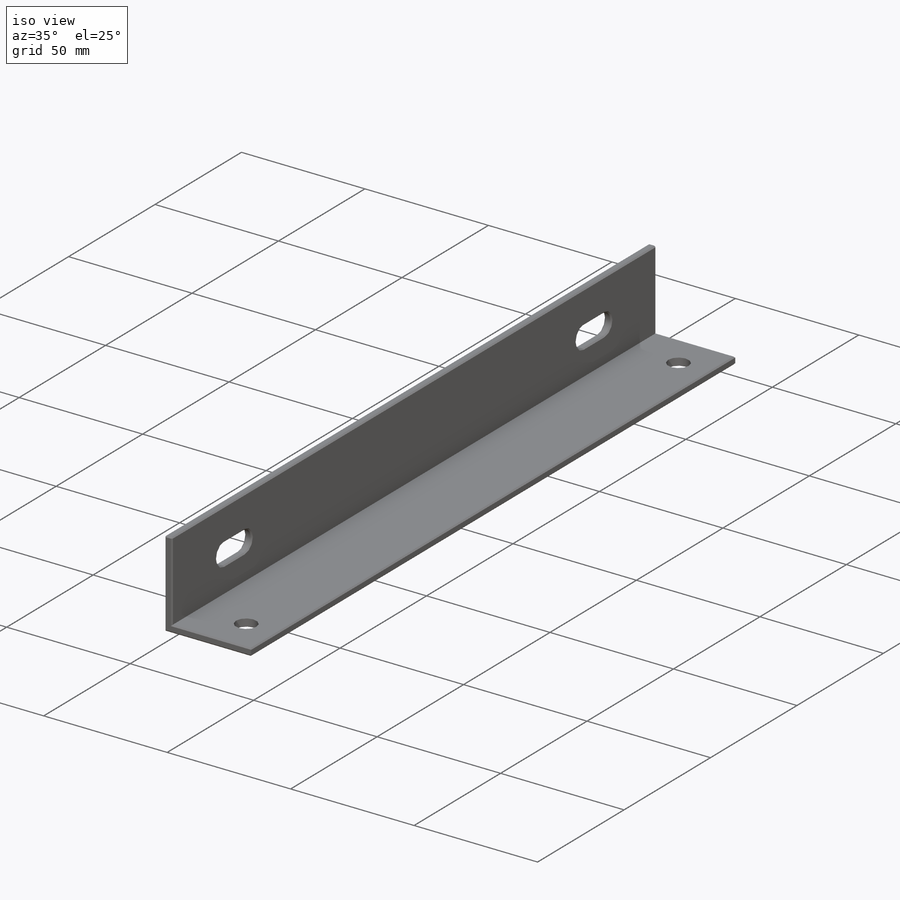
[diagram: iso view]
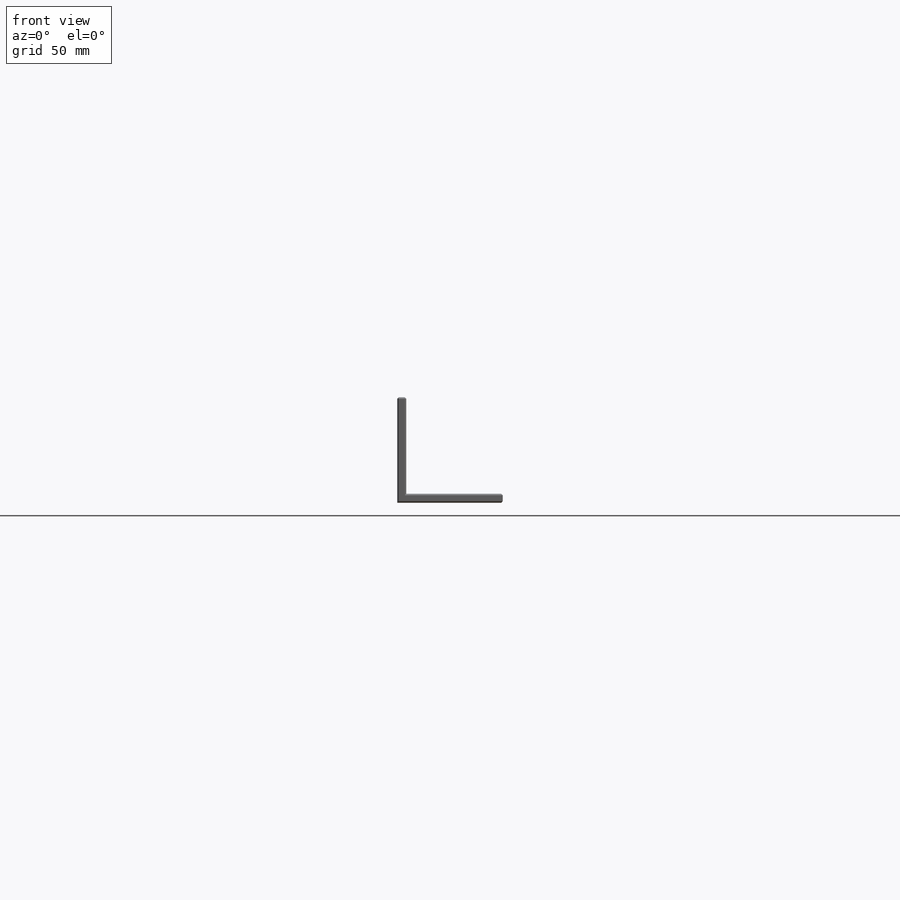
[diagram: front view]
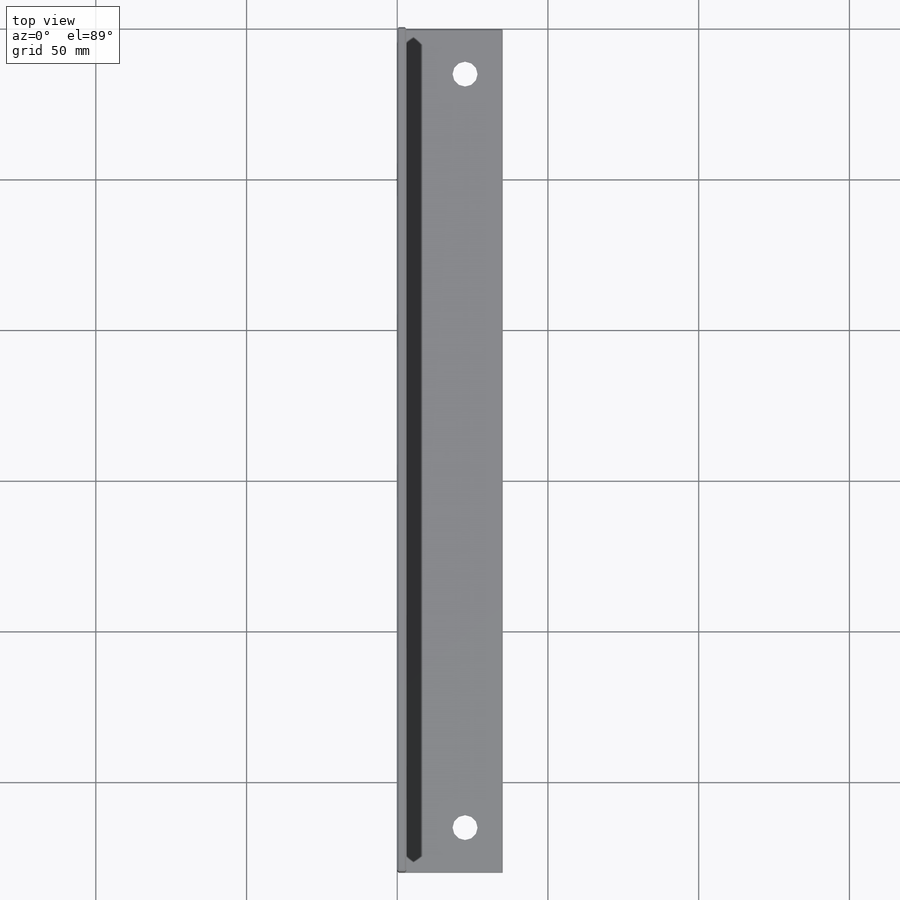
[diagram: top view]
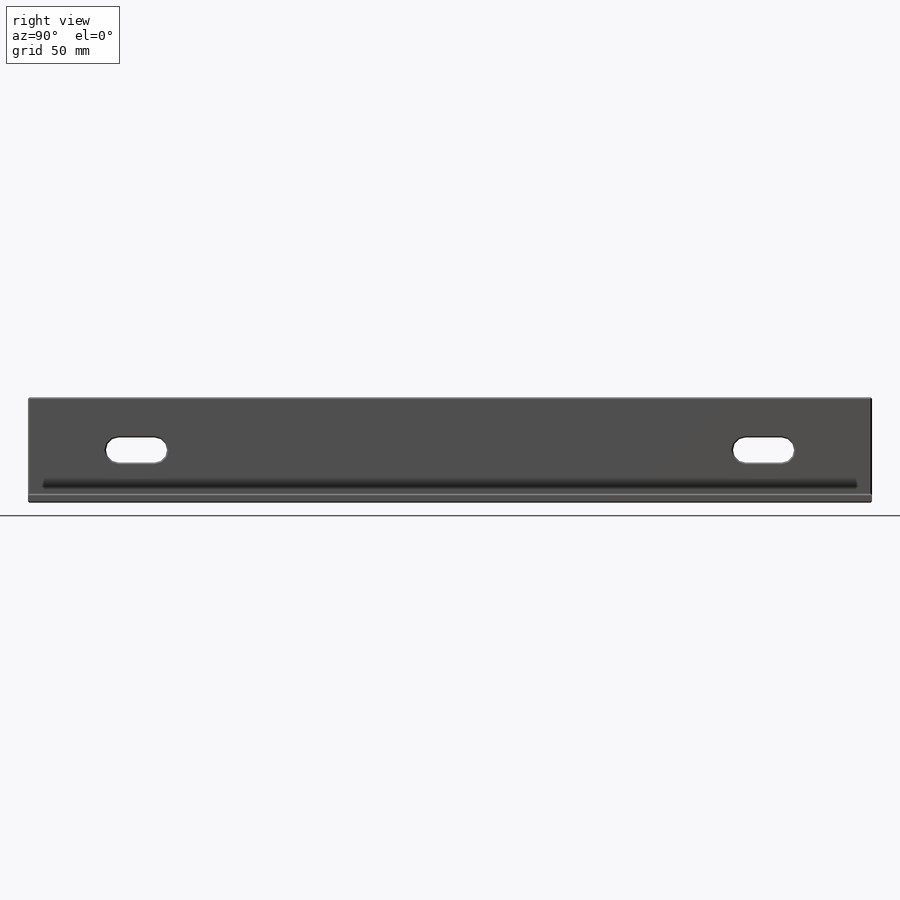
[diagram: right view]
SOLIDWORKS PART (.sldprt)
format: sldprt  version: not decoded by parser v0  size: 250,368 bytes
history: native  units: mm
features: plane x5, sketch x3, cut_extrude x2, chamfer x2, material x1, extrude x1 (+8 scaffold rows collapsed)
feature tree (22):
  scaffold x8  (default folders/planes/origin — collapsed)
  material  "Materiál <není určen>"
  plane  "Přední rovina"
  plane  "Horní rovina"
  plane  "Pravá rovina"
  sketch  "Skica1"  dims[D1=35.0mm D2=35.0mm D3=3.0mm D4=3.0mm]
  extrude  "Přidat vysunutím1"  Depth=280mm
  plane  "Rovina1"  Offset=0mm
  sketch  "Skica2"  dims[D1=4.15mm D3=4.15mm D4=4.15mm D5=4.15mm D2=30.0mm D6=30.0mm D7=12.0mm D8=12.0mm]
  cut_extrude  "Odebrat vysunutím1"  Depth=4mm
  plane  "Rovina2"  Offset=0mm
  sketch  "Skica3"  dims[c1.D2=10.3mm c1.D3=8.3mm c2.D2=8.3mm c2.D1=12.5mm c2.D4=250.0mm c2.D5=15.0mm c2.D6=15.0mm]
  cut_extrude  "Odebrat vysunutím2"  Depth=4mm
  chamfer  "Zkosení1"  Distance=0.5mm Angle=45deg
  chamfer  "Zkosení2"  Distance=0.5mm Angle=45deg
decode coverage: 8 of 8 modeling features carry decoded parameters
note: suppression state not decoded; provenance and decode notes live in map.json
